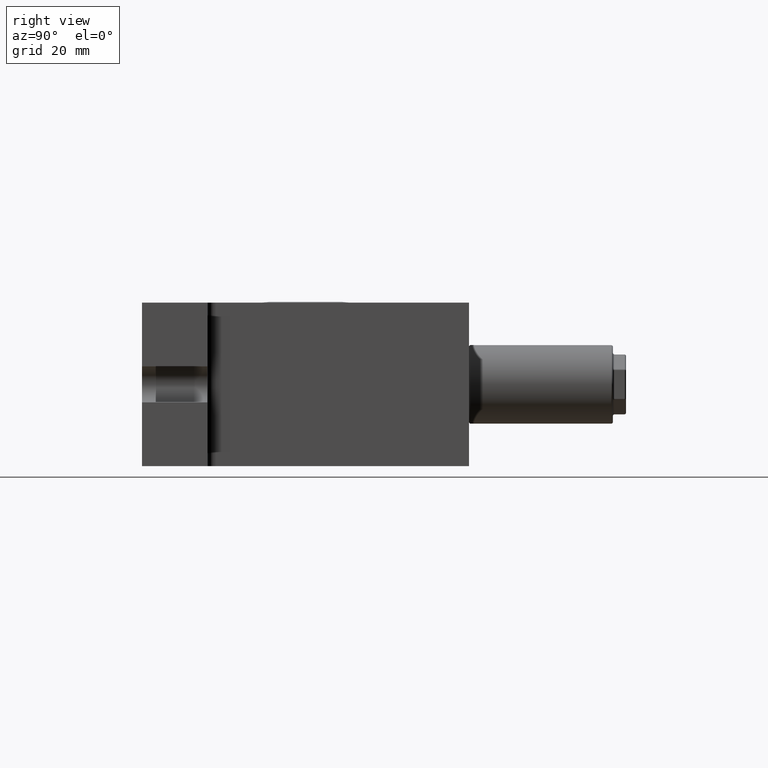
[diagram: clean part render]
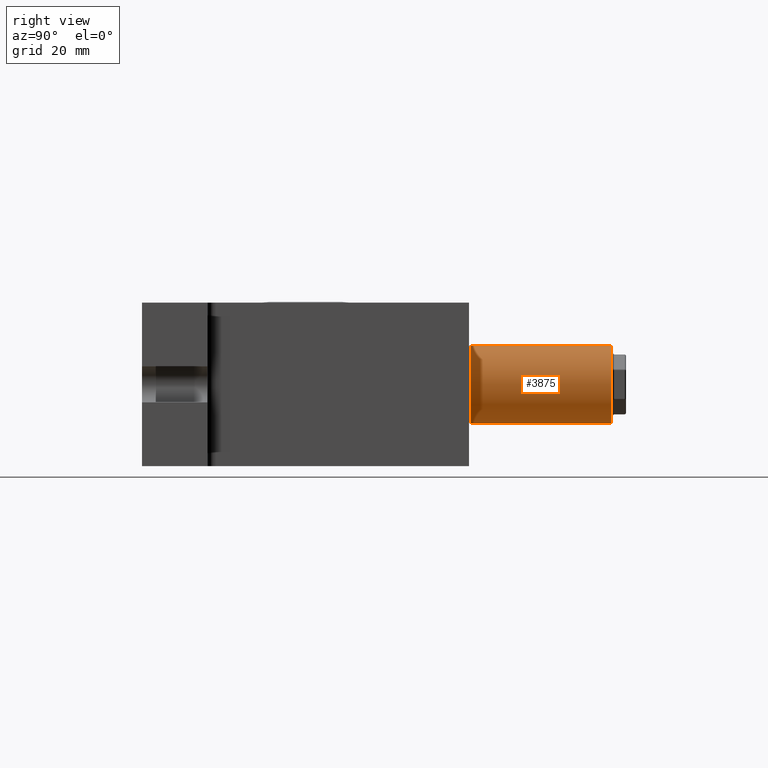
[diagram: same view with one face highlighted and labeled with its STEP entity id]
A machine part, right view. The second image highlights one B-rep face of the part: STEP entity #3875.
In plain terms, the highlighted cylindrical surface (partial cylindrical patch) has radius 12 mm, axis along (0, -1, 0).
Its self-contained STEP definition (entity closure, byte-faithful):
#18 = LINE ( 'NONE', #3599, #5607 ) ;
#31 = EDGE_CURVE ( 'NONE', #305, #5256, #6566, .T. ) ;
#38 = VERTEX_POINT ( 'NONE', #1035 ) ;
#39 = DIRECTION ( 'NONE',  ( 0.0000000000000000000, 0.0000000000000000000, 1.000000000000000000 ) ) ;
#124 = ORIENTED_EDGE ( 'NONE', *, *, #801, .T. ) ;
#185 = VERTEX_POINT ( 'NONE', #2192 ) ;
#202 = CARTESIAN_POINT ( 'NONE',  ( -28.00000000000000000, 94.00000000000000000, -12.00000000000000000 ) ) ;
#257 = EDGE_CURVE ( 'NONE', #529, #3220, #3844, .T. ) ;
#264 = LINE ( 'NONE', #3474, #5840 ) ;
#305 = VERTEX_POINT ( 'NONE', #2358 ) ;
#352 = CARTESIAN_POINT ( 'NONE',  ( -28.00000000000000000, 66.00000000000000000, 12.00000000000000000 ) ) ;
#430 = LINE ( 'NONE', #1693, #5491 ) ;
#529 = VERTEX_POINT ( 'NONE', #1326 ) ;
#680 = LINE ( 'NONE', #3832, #2958 ) ;
#686 = VECTOR ( 'NONE', #3189, 1000.000000000000000 ) ;
#717 = EDGE_CURVE ( 'NONE', #6825, #38, #2738, .T. ) ;
#721 = ORIENTED_EDGE ( 'NONE', *, *, #1091, .T. ) ;
#746 = CARTESIAN_POINT ( 'NONE',  ( -28.00000000000000000, 94.00000000000000000, -12.00000000000000000 ) ) ;
#801 = EDGE_CURVE ( 'NONE', #1379, #4282, #6116, .T. ) ;
#980 = VECTOR ( 'NONE', #5121, 1000.000000000000000 ) ;
#1016 = CARTESIAN_POINT ( 'NONE',  ( -28.00000000000000000, 84.00000000000000000, -12.00000000000000000 ) ) ;
#1019 = ORIENTED_EDGE ( 'NONE', *, *, #6457, .F. ) ;
#1035 = CARTESIAN_POINT ( 'NONE',  ( -28.00000000000000000, 76.00000000000000000, 12.00000000000000000 ) ) ;
#1043 = CARTESIAN_POINT ( 'NONE',  ( -28.00000000000000000, 94.00000000000000000, 12.00000000000000000 ) ) ;
#1089 = CARTESIAN_POINT ( 'NONE',  ( -28.00000000000000000, 94.00000000000000000, -12.00000000000000000 ) ) ;
#1091 = EDGE_CURVE ( 'NONE', #4282, #3220, #1374, .T. ) ;
#1095 = VECTOR ( 'NONE', #1359, 1000.000000000000000 ) ;
#1224 = ORIENTED_EDGE ( 'NONE', *, *, #6974, .T. ) ;
#1237 = EDGE_LOOP ( 'NONE', ( #5198, #6891, #5569, #2186, #2574, #5290, #1724, #4032, #1224, #2150, #124, #721, #6201, #2216, #6480, #5304, #1019, #1962, #1553, #3847 ) ) ;
#1241 = CARTESIAN_POINT ( 'NONE',  ( -28.00000000000000000, 50.50000000000000000, -12.00000000000000000 ) ) ;
#1326 = CARTESIAN_POINT ( 'NONE',  ( -28.00000000000000000, 58.00000000000000000, -12.00000000000000000 ) ) ;
#1359 = DIRECTION ( 'NONE',  ( 0.0000000000000000000, -1.000000000000000000, 0.0000000000000000000 ) ) ;
#1374 = CIRCLE ( 'NONE', #5419, 12.00000000000000000 ) ;
#1379 = VERTEX_POINT ( 'NONE', #5968 ) ;
#1388 = VECTOR ( 'NONE', #5844, 1000.000000000000000 ) ;
#1553 = ORIENTED_EDGE ( 'NONE', *, *, #31, .F. ) ;
#1589 = VECTOR ( 'NONE', #5119, 1000.000000000000000 ) ;
#1612 = EDGE_CURVE ( 'NONE', #2832, #5931, #3989, .T. ) ;
#1682 = EDGE_CURVE ( 'NONE', #529, #3601, #2640, .T. ) ;
#1693 = CARTESIAN_POINT ( 'NONE',  ( -28.00000000000000000, 94.00000000000000000, -12.00000000000000000 ) ) ;
#1724 = ORIENTED_EDGE ( 'NONE', *, *, #3987, .T. ) ;
#1754 = CARTESIAN_POINT ( 'NONE',  ( -28.00000000000000000, 68.00000000000000000, 12.00000000000000000 ) ) ;
#1853 = DIRECTION ( 'NONE',  ( 0.0000000000000000000, -1.000000000000000000, 0.0000000000000000000 ) ) ;
#1962 = ORIENTED_EDGE ( 'NONE', *, *, #3564, .F. ) ;
#2023 = CARTESIAN_POINT ( 'NONE',  ( -28.00000000000000000, 74.00000000000000000, 12.00000000000000000 ) ) ;
#2051 = EDGE_CURVE ( 'NONE', #2832, #5515, #3223, .T. ) ;
#2079 = CARTESIAN_POINT ( 'NONE',  ( -28.00000000000000000, 94.00000000000000000, -12.00000000000000000 ) ) ;
#2133 = DIRECTION ( 'NONE',  ( -0.0000000000000000000, 1.000000000000000000, -0.0000000000000000000 ) ) ;
#2150 = ORIENTED_EDGE ( 'NONE', *, *, #3437, .T. ) ;
#2175 = CARTESIAN_POINT ( 'NONE',  ( -28.00000000000000000, 94.00000000000000000, 0.0000000000000000000 ) ) ;
#2186 = ORIENTED_EDGE ( 'NONE', *, *, #4624, .F. ) ;
#2192 = CARTESIAN_POINT ( 'NONE',  ( -28.00000000000000000, 74.00000000000000000, -12.00000000000000000 ) ) ;
#2216 = ORIENTED_EDGE ( 'NONE', *, *, #1682, .T. ) ;
#2311 = CARTESIAN_POINT ( 'NONE',  ( -28.00000000000000000, 94.00000000000000000, 12.00000000000000000 ) ) ;
#2358 = CARTESIAN_POINT ( 'NONE',  ( -28.00000000000000000, 82.00000000000000000, -12.00000000000000000 ) ) ;
#2369 = DIRECTION ( 'NONE',  ( 0.0000000000000000000, -1.000000000000000000, 0.0000000000000000000 ) ) ;
#2522 = CARTESIAN_POINT ( 'NONE',  ( -28.00000000000000000, 68.00000000000000000, -12.00000000000000000 ) ) ;
#2574 = ORIENTED_EDGE ( 'NONE', *, *, #717, .T. ) ;
#2632 = EDGE_CURVE ( 'NONE', #5515, #305, #3801, .T. ) ;
#2640 = LINE ( 'NONE', #1089, #6728 ) ;
#2677 = CARTESIAN_POINT ( 'NONE',  ( -28.00000000000000000, 93.50000000000000000, 0.0000000000000000000 ) ) ;
#2733 = LINE ( 'NONE', #6101, #2994 ) ;
#2738 = LINE ( 'NONE', #5184, #4859 ) ;
#2832 = VERTEX_POINT ( 'NONE', #4776 ) ;
#2862 = CARTESIAN_POINT ( 'NONE',  ( -28.00000000000000000, 94.00000000000000000, -12.00000000000000000 ) ) ;
#2958 = VECTOR ( 'NONE', #6486, 1000.000000000000000 ) ;
#2994 = VECTOR ( 'NONE', #6669, 1000.000000000000000 ) ;
#3043 = LINE ( 'NONE', #6392, #686 ) ;
#3189 = DIRECTION ( 'NONE',  ( 0.0000000000000000000, -1.000000000000000000, 0.0000000000000000000 ) ) ;
#3205 = LINE ( 'NONE', #4040, #1589 ) ;
#3220 = VERTEX_POINT ( 'NONE', #1241 ) ;
#3223 = LINE ( 'NONE', #746, #6431 ) ;
#3334 = CARTESIAN_POINT ( 'NONE',  ( -28.00000000000000000, 66.00000000000000000, -12.00000000000000000 ) ) ;
#3391 = LINE ( 'NONE', #3639, #6088 ) ;
#3437 = EDGE_CURVE ( 'NONE', #6010, #1379, #3391, .T. ) ;
#3474 = CARTESIAN_POINT ( 'NONE',  ( -28.00000000000000000, 94.00000000000000000, 12.00000000000000000 ) ) ;
#3490 = VERTEX_POINT ( 'NONE', #1754 ) ;
#3564 = EDGE_CURVE ( 'NONE', #5256, #185, #430, .T. ) ;
#3599 = CARTESIAN_POINT ( 'NONE',  ( -28.00000000000000000, 94.00000000000000000, -12.00000000000000000 ) ) ;
#3601 = VERTEX_POINT ( 'NONE', #5453 ) ;
#3639 = CARTESIAN_POINT ( 'NONE',  ( -28.00000000000000000, 94.00000000000000000, 12.00000000000000000 ) ) ;
#3648 = CARTESIAN_POINT ( 'NONE',  ( -28.00000000000000000, 50.50000000000000000, 12.00000000000000000 ) ) ;
#3733 = EDGE_CURVE ( 'NONE', #7025, #3490, #5997, .T. ) ;
#3801 = LINE ( 'NONE', #2862, #1095 ) ;
#3821 = DIRECTION ( 'NONE',  ( 0.0000000000000000000, -1.000000000000000000, 0.0000000000000000000 ) ) ;
#3832 = CARTESIAN_POINT ( 'NONE',  ( -28.00000000000000000, 94.00000000000000000, -12.00000000000000000 ) ) ;
#3844 = LINE ( 'NONE', #202, #980 ) ;
#3847 = ORIENTED_EDGE ( 'NONE', *, *, #2632, .F. ) ;
#3875 = ADVANCED_FACE ( 'NONE', ( #4910 ), #5402, .T. ) ;
#3971 = VERTEX_POINT ( 'NONE', #3334 ) ;
#3987 = EDGE_CURVE ( 'NONE', #4320, #3490, #6864, .T. ) ;
#3989 = CIRCLE ( 'NONE', #5618, 12.00000000000000000 ) ;
#4032 = ORIENTED_EDGE ( 'NONE', *, *, #3733, .F. ) ;
#4036 = AXIS2_PLACEMENT_3D ( 'NONE', #2175, #6414, #39 ) ;
#4040 = CARTESIAN_POINT ( 'NONE',  ( -28.00000000000000000, 94.00000000000000000, 12.00000000000000000 ) ) ;
#4138 = CARTESIAN_POINT ( 'NONE',  ( -28.00000000000000000, 60.00000000000000000, 12.00000000000000000 ) ) ;
#4163 = VECTOR ( 'NONE', #4316, 1000.000000000000000 ) ;
#4185 = VERTEX_POINT ( 'NONE', #2522 ) ;
#4212 = CARTESIAN_POINT ( 'NONE',  ( -28.00000000000000000, 94.00000000000000000, 12.00000000000000000 ) ) ;
#4282 = VERTEX_POINT ( 'NONE', #3648 ) ;
#4297 = VECTOR ( 'NONE', #3821, 1000.000000000000000 ) ;
#4316 = DIRECTION ( 'NONE',  ( 0.0000000000000000000, -1.000000000000000000, 0.0000000000000000000 ) ) ;
#4320 = VERTEX_POINT ( 'NONE', #2023 ) ;
#4326 = DIRECTION ( 'NONE',  ( 0.0000000000000000000, 0.0000000000000000000, -1.000000000000000000 ) ) ;
#4422 = EDGE_CURVE ( 'NONE', #4185, #3971, #3043, .T. ) ;
#4502 = CARTESIAN_POINT ( 'NONE',  ( -28.00000000000000000, 82.00000000000000000, 12.00000000000000000 ) ) ;
#4554 = DIRECTION ( 'NONE',  ( 0.0000000000000000000, -1.000000000000000000, 0.0000000000000000000 ) ) ;
#4574 = CARTESIAN_POINT ( 'NONE',  ( -28.00000000000000000, 76.00000000000000000, -12.00000000000000000 ) ) ;
#4624 = EDGE_CURVE ( 'NONE', #6825, #5954, #3205, .T. ) ;
#4651 = LINE ( 'NONE', #5834, #5988 ) ;
#4755 = DIRECTION ( 'NONE',  ( 0.0000000000000000000, 1.000000000000000000, 0.0000000000000000000 ) ) ;
#4776 = CARTESIAN_POINT ( 'NONE',  ( -28.00000000000000000, 93.50000000000000000, -12.00000000000000000 ) ) ;
#4793 = EDGE_CURVE ( 'NONE', #4320, #38, #4651, .T. ) ;
#4859 = VECTOR ( 'NONE', #5721, 1000.000000000000000 ) ;
#4910 = FACE_OUTER_BOUND ( 'NONE', #1237, .T. ) ;
#4982 = EDGE_CURVE ( 'NONE', #3971, #3601, #680, .T. ) ;
#5119 = DIRECTION ( 'NONE',  ( -0.0000000000000000000, 1.000000000000000000, -0.0000000000000000000 ) ) ;
#5121 = DIRECTION ( 'NONE',  ( 0.0000000000000000000, -1.000000000000000000, 0.0000000000000000000 ) ) ;
#5184 = CARTESIAN_POINT ( 'NONE',  ( -28.00000000000000000, 94.00000000000000000, 12.00000000000000000 ) ) ;
#5198 = ORIENTED_EDGE ( 'NONE', *, *, #2051, .F. ) ;
#5256 = VERTEX_POINT ( 'NONE', #4574 ) ;
#5290 = ORIENTED_EDGE ( 'NONE', *, *, #4793, .F. ) ;
#5304 = ORIENTED_EDGE ( 'NONE', *, *, #4422, .F. ) ;
#5402 = CYLINDRICAL_SURFACE ( 'NONE', #4036, 12.00000000000000000 ) ;
#5419 = AXIS2_PLACEMENT_3D ( 'NONE', #6944, #4755, #6402 ) ;
#5453 = CARTESIAN_POINT ( 'NONE',  ( -28.00000000000000000, 60.00000000000000000, -12.00000000000000000 ) ) ;
#5474 = DIRECTION ( 'NONE',  ( 0.0000000000000000000, -1.000000000000000000, 0.0000000000000000000 ) ) ;
#5491 = VECTOR ( 'NONE', #5474, 1000.000000000000000 ) ;
#5515 = VERTEX_POINT ( 'NONE', #1016 ) ;
#5569 = ORIENTED_EDGE ( 'NONE', *, *, #6270, .T. ) ;
#5607 = VECTOR ( 'NONE', #1853, 1000.000000000000000 ) ;
#5618 = AXIS2_PLACEMENT_3D ( 'NONE', #2677, #6459, #4326 ) ;
#5721 = DIRECTION ( 'NONE',  ( 0.0000000000000000000, -1.000000000000000000, 0.0000000000000000000 ) ) ;
#5755 = DIRECTION ( 'NONE',  ( -0.0000000000000000000, 1.000000000000000000, -0.0000000000000000000 ) ) ;
#5811 = DIRECTION ( 'NONE',  ( 0.0000000000000000000, -1.000000000000000000, 0.0000000000000000000 ) ) ;
#5834 = CARTESIAN_POINT ( 'NONE',  ( -28.00000000000000000, 94.00000000000000000, 12.00000000000000000 ) ) ;
#5840 = VECTOR ( 'NONE', #4554, 1000.000000000000000 ) ;
#5844 = DIRECTION ( 'NONE',  ( 0.0000000000000000000, -1.000000000000000000, 0.0000000000000000000 ) ) ;
#5931 = VERTEX_POINT ( 'NONE', #6915 ) ;
#5954 = VERTEX_POINT ( 'NONE', #6371 ) ;
#5968 = CARTESIAN_POINT ( 'NONE',  ( -28.00000000000000000, 58.00000000000000000, 12.00000000000000000 ) ) ;
#5988 = VECTOR ( 'NONE', #7002, 1000.000000000000000 ) ;
#5997 = LINE ( 'NONE', #4212, #6875 ) ;
#6010 = VERTEX_POINT ( 'NONE', #4138 ) ;
#6088 = VECTOR ( 'NONE', #5811, 1000.000000000000000 ) ;
#6101 = CARTESIAN_POINT ( 'NONE',  ( -28.00000000000000000, 94.00000000000000000, 12.00000000000000000 ) ) ;
#6116 = LINE ( 'NONE', #1043, #4163 ) ;
#6201 = ORIENTED_EDGE ( 'NONE', *, *, #257, .F. ) ;
#6270 = EDGE_CURVE ( 'NONE', #5931, #5954, #2733, .T. ) ;
#6371 = CARTESIAN_POINT ( 'NONE',  ( -28.00000000000000000, 84.00000000000000000, 12.00000000000000000 ) ) ;
#6392 = CARTESIAN_POINT ( 'NONE',  ( -28.00000000000000000, 94.00000000000000000, -12.00000000000000000 ) ) ;
#6402 = DIRECTION ( 'NONE',  ( 0.0000000000000000000, 0.0000000000000000000, -1.000000000000000000 ) ) ;
#6414 = DIRECTION ( 'NONE',  ( 0.0000000000000000000, -1.000000000000000000, 0.0000000000000000000 ) ) ;
#6431 = VECTOR ( 'NONE', #2369, 1000.000000000000000 ) ;
#6457 = EDGE_CURVE ( 'NONE', #185, #4185, #18, .T. ) ;
#6459 = DIRECTION ( 'NONE',  ( -0.0000000000000000000, -1.000000000000000000, -0.0000000000000000000 ) ) ;
#6480 = ORIENTED_EDGE ( 'NONE', *, *, #4982, .F. ) ;
#6486 = DIRECTION ( 'NONE',  ( 0.0000000000000000000, -1.000000000000000000, 0.0000000000000000000 ) ) ;
#6566 = LINE ( 'NONE', #2079, #1388 ) ;
#6669 = DIRECTION ( 'NONE',  ( 0.0000000000000000000, -1.000000000000000000, 0.0000000000000000000 ) ) ;
#6728 = VECTOR ( 'NONE', #2133, 1000.000000000000000 ) ;
#6825 = VERTEX_POINT ( 'NONE', #4502 ) ;
#6864 = LINE ( 'NONE', #2311, #4297 ) ;
#6875 = VECTOR ( 'NONE', #5755, 1000.000000000000000 ) ;
#6891 = ORIENTED_EDGE ( 'NONE', *, *, #1612, .T. ) ;
#6915 = CARTESIAN_POINT ( 'NONE',  ( -28.00000000000000000, 93.50000000000000000, 12.00000000000000000 ) ) ;
#6944 = CARTESIAN_POINT ( 'NONE',  ( -28.00000000000000000, 50.50000000000000000, 0.0000000000000000000 ) ) ;
#6974 = EDGE_CURVE ( 'NONE', #7025, #6010, #264, .T. ) ;
#7002 = DIRECTION ( 'NONE',  ( -0.0000000000000000000, 1.000000000000000000, -0.0000000000000000000 ) ) ;
#7025 = VERTEX_POINT ( 'NONE', #352 ) ;